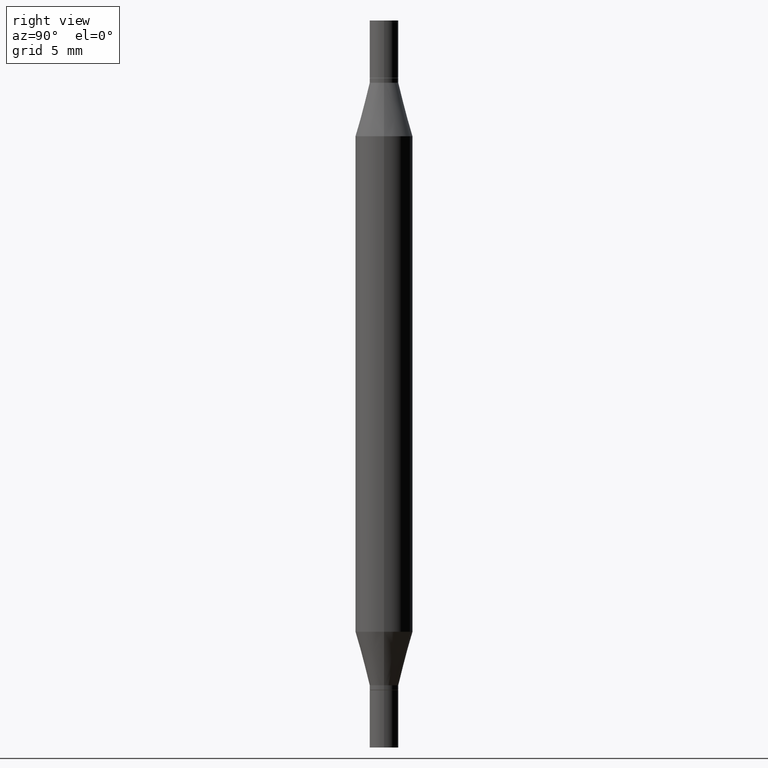
[diagram: clean part render]
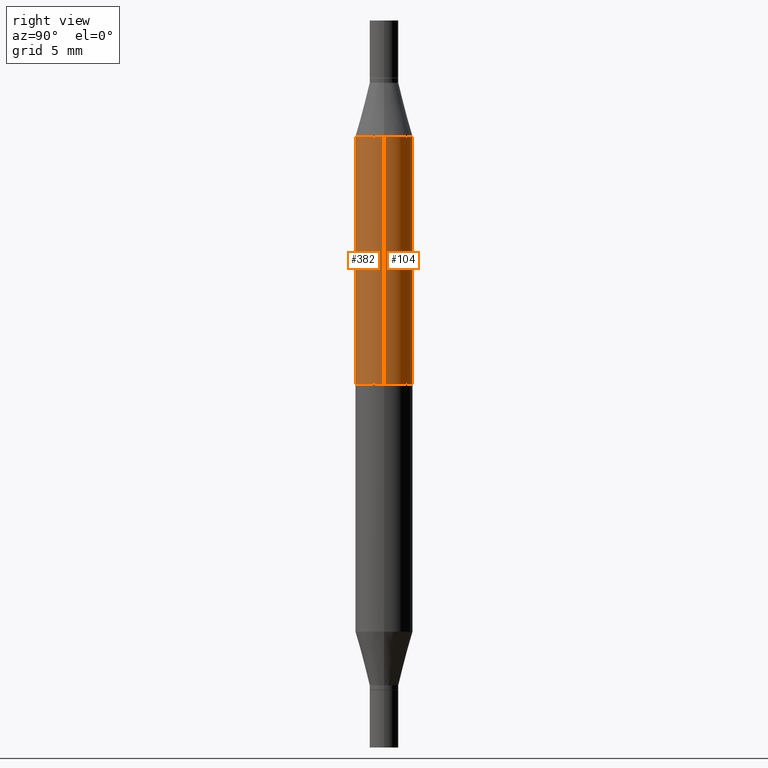
[diagram: same view with one multi-face feature highlighted, each face labeled with its STEP entity id]
A machine part, right view. The highlighted faces form ONE feature: a constant-radius fillet chain: 2 tangent blend faces with common blend radius 1.4999 mm. The faces share edges in the B-rep.
Their STEP definitions:
[1] entity #382 (Cylinder):
#12 = ORIENTED_EDGE ( 'NONE', *, *, #870, .F. ) ;
#21 = DIRECTION ( 'NONE',  ( 1.000000000000000000, -6.982962677686272233E-15, 0.000000000000000000 ) ) ;
#29 = DIRECTION ( 'NONE',  ( -2.445468806185136877E-29, -3.491805094961123683E-15, -1.000000000000000000 ) ) ;
#31 = CARTESIAN_POINT ( 'NONE',  ( 0.05904999999999999832, -1.243484836231766624E-15, -0.2380954988232820146 ) ) ;
#35 = DIRECTION ( 'NONE',  ( -2.445468806185136877E-29, -3.491805094961123683E-15, -1.000000000000000000 ) ) ;
#69 = CARTESIAN_POINT ( 'NONE',  ( -0.05905000000000000526, -1.316359346049593906E-15, -0.7480499999999999927 ) ) ;
#76 = CARTESIAN_POINT ( 'NONE',  ( 3.076410765668156654E-29, -8.311408901143919011E-16, -0.2380954988232820146 ) ) ;
#81 = VECTOR ( 'NONE', #29, 39.37007874015748143 ) ;
#91 = CYLINDRICAL_SURFACE ( 'NONE', #649, 0.05905000000000000526 ) ;
#112 = ORIENTED_EDGE ( 'NONE', *, *, #134, .T. ) ;
#119 = VECTOR ( 'NONE', #35, 39.37007874015748143 ) ;
#134 = EDGE_CURVE ( 'NONE', #932, #614, #789, .T. ) ;
#175 = LINE ( 'NONE', #467, #81 ) ;
#254 = CARTESIAN_POINT ( 'NONE',  ( -0.05905000000000000526, -4.818735010038875060E-15, -1.496099999999999985 ) ) ;
#285 = DIRECTION ( 'NONE',  ( 2.445468806185136597E-29, 3.491805094961124077E-15, 1.000000000000000000 ) ) ;
#301 = DIRECTION ( 'NONE',  ( 0.000000000000000000, 1.000000000000000000, -4.626330217890369336E-15 ) ) ;
#313 = DIRECTION ( 'NONE',  ( -2.445468806185136597E-29, -3.491805094961124077E-15, -1.000000000000000000 ) ) ;
#371 = ORIENTED_EDGE ( 'NONE', *, *, #453, .F. ) ;
#382 = ADVANCED_FACE ( 'NONE', ( #461 ), #91, .T. ) ;
#453 = EDGE_CURVE ( 'NONE', #766, #614, #934, .T. ) ;
#461 = FACE_OUTER_BOUND ( 'NONE', #853, .T. ) ;
#467 = CARTESIAN_POINT ( 'NONE',  ( 0.05905000000000000526, -5.636191362924657961E-15, -1.496099999999999985 ) ) ;
#535 = AXIS2_PLACEMENT_3D ( 'NONE', #76, #285, #756 ) ;
#585 = EDGE_CURVE ( 'NONE', #932, #772, #917, .T. ) ;
#614 = VERTEX_POINT ( 'NONE', #69 ) ;
#626 = CARTESIAN_POINT ( 'NONE',  ( 1.829332940466791194E-29, -2.611802615521614830E-15, -0.7480499999999999927 ) ) ;
#647 = CARTESIAN_POINT ( 'NONE',  ( -0.05904999999999999832, -4.260284833459836245E-16, -0.2380954988232820146 ) ) ;
#649 = AXIS2_PLACEMENT_3D ( 'NONE', #767, #313, #21 ) ;
#720 = AXIS2_PLACEMENT_3D ( 'NONE', #626, #846, #301 ) ;
#756 = DIRECTION ( 'NONE',  ( 1.000000000000000000, -6.982962677686265133E-15, 0.000000000000000000 ) ) ;
#766 = VERTEX_POINT ( 'NONE', #955 ) ;
#767 = CARTESIAN_POINT ( 'NONE',  ( 0.000000000000000000, -5.223847416807283040E-15, -1.496099999999999985 ) ) ;
#772 = VERTEX_POINT ( 'NONE', #31 ) ;
#784 = ORIENTED_EDGE ( 'NONE', *, *, #585, .F. ) ;
#789 = LINE ( 'NONE', #254, #119 ) ;
#846 = DIRECTION ( 'NONE',  ( -0.000000000000000000, -3.491643216902134830E-15, -1.000000000000000000 ) ) ;
#853 = EDGE_LOOP ( 'NONE', ( #784, #112, #371, #12 ) ) ;
#870 = EDGE_CURVE ( 'NONE', #772, #766, #175, .T. ) ;
#917 = CIRCLE ( 'NONE', #535, 0.05904999999999999832 ) ;
#932 = VERTEX_POINT ( 'NONE', #647 ) ;
#934 = CIRCLE ( 'NONE', #720, 0.05905000000000000526 ) ;
#955 = CARTESIAN_POINT ( 'NONE',  ( 0.05905000000000000526, -2.133815698935376609E-15, -0.7480499999999999927 ) ) ;
[2] entity #104 (Cylinder):
#29 = DIRECTION ( 'NONE',  ( -2.445468806185136877E-29, -3.491805094961123683E-15, -1.000000000000000000 ) ) ;
#31 = CARTESIAN_POINT ( 'NONE',  ( 0.05904999999999999832, -1.243484836231766624E-15, -0.2380954988232820146 ) ) ;
#35 = DIRECTION ( 'NONE',  ( -2.445468806185136877E-29, -3.491805094961123683E-15, -1.000000000000000000 ) ) ;
#69 = CARTESIAN_POINT ( 'NONE',  ( -0.05905000000000000526, -1.316359346049593906E-15, -0.7480499999999999927 ) ) ;
#74 = DIRECTION ( 'NONE',  ( 2.445468806185136597E-29, 3.491805094961124077E-15, 1.000000000000000000 ) ) ;
#81 = VECTOR ( 'NONE', #29, 39.37007874015748143 ) ;
#104 = ADVANCED_FACE ( 'NONE', ( #197 ), #498, .T. ) ;
#119 = VECTOR ( 'NONE', #35, 39.37007874015748143 ) ;
#134 = EDGE_CURVE ( 'NONE', #932, #614, #789, .T. ) ;
#171 = AXIS2_PLACEMENT_3D ( 'NONE', #889, #74, #353 ) ;
#175 = LINE ( 'NONE', #467, #81 ) ;
#197 = FACE_OUTER_BOUND ( 'NONE', #924, .T. ) ;
#199 = EDGE_CURVE ( 'NONE', #772, #932, #734, .T. ) ;
#219 = AXIS2_PLACEMENT_3D ( 'NONE', #744, #808, #426 ) ;
#254 = CARTESIAN_POINT ( 'NONE',  ( -0.05905000000000000526, -4.818735010038875060E-15, -1.496099999999999985 ) ) ;
#353 = DIRECTION ( 'NONE',  ( 1.000000000000000000, -6.982962677686265133E-15, 0.000000000000000000 ) ) ;
#394 = ORIENTED_EDGE ( 'NONE', *, *, #686, .F. ) ;
#425 = DIRECTION ( 'NONE',  ( -2.445468806185136597E-29, -3.491805094961124077E-15, -1.000000000000000000 ) ) ;
#426 = DIRECTION ( 'NONE',  ( 0.000000000000000000, 1.000000000000000000, -4.626330217890369336E-15 ) ) ;
#467 = CARTESIAN_POINT ( 'NONE',  ( 0.05905000000000000526, -5.636191362924657961E-15, -1.496099999999999985 ) ) ;
#485 = CARTESIAN_POINT ( 'NONE',  ( 0.000000000000000000, -5.223847416807283040E-15, -1.496099999999999985 ) ) ;
#498 = CYLINDRICAL_SURFACE ( 'NONE', #502, 0.05905000000000000526 ) ;
#502 = AXIS2_PLACEMENT_3D ( 'NONE', #485, #425, #660 ) ;
#533 = ORIENTED_EDGE ( 'NONE', *, *, #199, .F. ) ;
#553 = CIRCLE ( 'NONE', #219, 0.05905000000000000526 ) ;
#614 = VERTEX_POINT ( 'NONE', #69 ) ;
#647 = CARTESIAN_POINT ( 'NONE',  ( -0.05904999999999999832, -4.260284833459836245E-16, -0.2380954988232820146 ) ) ;
#660 = DIRECTION ( 'NONE',  ( 1.000000000000000000, -6.982962677686272233E-15, 0.000000000000000000 ) ) ;
#686 = EDGE_CURVE ( 'NONE', #614, #766, #553, .T. ) ;
#734 = CIRCLE ( 'NONE', #171, 0.05904999999999999832 ) ;
#744 = CARTESIAN_POINT ( 'NONE',  ( 1.829332940466791194E-29, -2.611802615521614830E-15, -0.7480499999999999927 ) ) ;
#762 = ORIENTED_EDGE ( 'NONE', *, *, #870, .T. ) ;
#766 = VERTEX_POINT ( 'NONE', #955 ) ;
#772 = VERTEX_POINT ( 'NONE', #31 ) ;
#782 = ORIENTED_EDGE ( 'NONE', *, *, #134, .F. ) ;
#789 = LINE ( 'NONE', #254, #119 ) ;
#808 = DIRECTION ( 'NONE',  ( -0.000000000000000000, -3.491643216902134830E-15, -1.000000000000000000 ) ) ;
#870 = EDGE_CURVE ( 'NONE', #772, #766, #175, .T. ) ;
#889 = CARTESIAN_POINT ( 'NONE',  ( 3.076410765668156654E-29, -8.311408901143919011E-16, -0.2380954988232820146 ) ) ;
#924 = EDGE_LOOP ( 'NONE', ( #782, #533, #762, #394 ) ) ;
#932 = VERTEX_POINT ( 'NONE', #647 ) ;
#955 = CARTESIAN_POINT ( 'NONE',  ( 0.05905000000000000526, -2.133815698935376609E-15, -0.7480499999999999927 ) ) ;